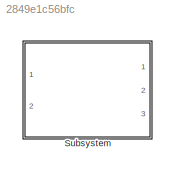
MODEL slx_2849e1c56bfc
KIND library
CONFIG AbsTol = auto
CONFIG EnableMultiTasking = off
CONFIG FixedStep = auto
CONFIG MaxStep = auto
CONFIG MinStep = auto
CONFIG RelTol = 1e-3
CONFIG SampleTimeConstraint = Unconstrained
CONFIG Solver = VariableStepAuto
CONFIG SolverName = VariableStepAuto
CONFIG StartTime = 0.0
CONFIG StopTime = 10.0
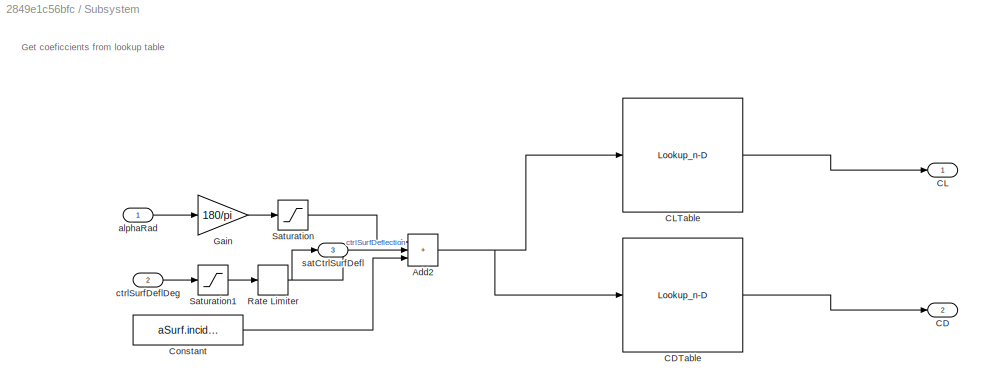
BLOCK [SubSystem] Subsystem
  Ports = [2, 3]
  RequestExecContextInheritance = off
BLOCK [Sum] Subsystem/Add2
  IconShape = rectangular
  Inputs = +++
  Ports = [3, 1]
BLOCK [Outport] Subsystem/CD
  Port = 2
  VectorParamsAs1DForOutWhenUnconnected = off
BLOCK [Lookup_n-D] Subsystem/CDTable
  BreakpointsForDimension1 = aSurf.alpha.Value
  ExtrapMethod = Clip
  InternalRulePriority = Speed
  LookupTableObject = CLTable
  NumberOfTableDimensions = 1
  Ports = [1, 1]
  RndMeth = Simplest
  Table = aSurf.CD.Value
  UseLastTableValue = on
BLOCK [Outport] Subsystem/CL
  VectorParamsAs1DForOutWhenUnconnected = off
BLOCK [Lookup_n-D] Subsystem/CLTable
  BreakpointsForDimension1 = aSurf.alpha.Value
  ExtrapMethod = Clip
  InternalRulePriority = Speed
  LookupTableObject = CLTable
  NumberOfTableDimensions = 1
  Ports = [1, 1]
  RndMeth = Simplest
  Table = aSurf.CL.Value
  UseLastTableValue = on
BLOCK [Constant] Subsystem/Constant
  Value = aSurf.incidence.Value
BLOCK [Gain] Subsystem/Gain
  Gain = 180/pi
BLOCK [RateLimiter] Subsystem/Rate Limiter
  FallingSlewLimit = -aSurf.maxCtrlDefSpeed.Value
  RisingSlewLimit = aSurf.maxCtrlDefSpeed.Value
  SampleTimeMode = inherited
BLOCK [Saturate] Subsystem/Saturation
  LowerLimit = -90
  UpperLimit = 90
BLOCK [Saturate] Subsystem/Saturation1
  LowerLimit = aSurf.minCtrlDef.Value
  UpperLimit = aSurf.maxCtrlDef.Value
BLOCK [Inport] Subsystem/alphaRad
BLOCK [Inport] Subsystem/ctrlSurfDeflDeg
  Port = 2
BLOCK [Outport] Subsystem/satCtrlSurfDefl
  Port = 3
ANNOTATION Subsystem: Get coeficcients from lookup table
NET Subsystem/Add2:1 -> Subsystem/CDTable:1, Subsystem/CLTable:1
LINE Subsystem/CDTable:1 -> Subsystem/CD:1
LINE Subsystem/CLTable:1 -> Subsystem/CL:1
LINE Subsystem/Constant:1 -> Subsystem/Add2:3
LINE Subsystem/Gain:1 -> Subsystem/Saturation:1
NET Subsystem/Rate Limiter:1 -> Subsystem/Add2:2, Subsystem/satCtrlSurfDefl:1
LINE Subsystem/Saturation1:1 -> Subsystem/Rate Limiter:1
LINE Subsystem/Saturation:1 -> Subsystem/Add2:1
LINE Subsystem/alphaRad:1 -> Subsystem/Gain:1
LINE Subsystem/ctrlSurfDeflDeg:1 -> Subsystem/Saturation1:1
note: NET lines group one-source signal fan-out (src -> all destinations, sorted); 1:1 wires keep LINE
